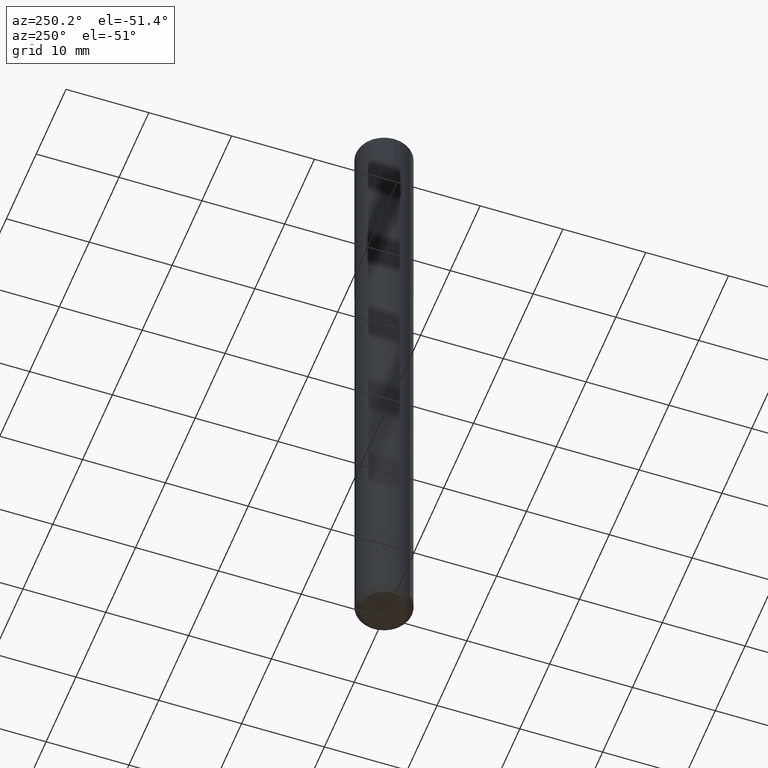
[diagram: clean part render]
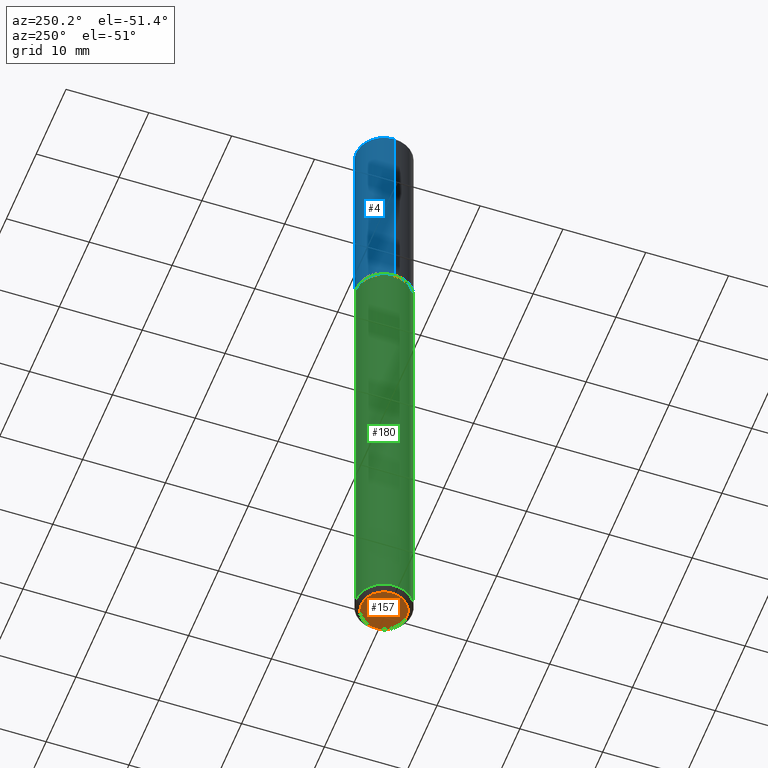
[diagram: same view with three faces highlighted in distinct colors, each labeled with its STEP entity id]
A machine part, auxiliary view with three faces highlighted in distinct colors.
Their STEP definitions:

[orange] entity #157 — the highlighted planar face has unit normal (-0, 0, 1).
#28 = PLANE ( 'NONE',  #402 ) ;
#36 = CARTESIAN_POINT ( 'NONE',  ( 7.948471098289592112E-29, -1.134631552277716210E-14, -3.250000000000000000 ) ) ;
#52 = AXIS2_PLACEMENT_3D ( 'NONE', #221, #256, #386 ) ;
#68 = VERTEX_POINT ( 'NONE', #92 ) ;
#92 = CARTESIAN_POINT ( 'NONE',  ( 8.547829111194798336E-16, 0.1077999999999886410, -3.250000000000000444 ) ) ;
#101 = EDGE_CURVE ( 'NONE', #304, #68, #111, .T. ) ;
#111 = CIRCLE ( 'NONE', #52, 0.1077999999999999931 ) ;
#125 = DIRECTION ( 'NONE',  ( -6.982962677686265133E-15, -1.000000000000000000, 5.068363624609022710E-15 ) ) ;
#133 = CARTESIAN_POINT ( 'NONE',  ( -7.527633766544998796E-16, -0.1078000000000113451, -3.249999999999999556 ) ) ;
#157 = ADVANCED_FACE ( 'NONE', ( #187 ), #28, .F. ) ;
#159 = CARTESIAN_POINT ( 'NONE',  ( 7.947773620101693940E-29, -1.134731435124022443E-14, -3.250000000000000000 ) ) ;
#187 = FACE_OUTER_BOUND ( 'NONE', #302, .T. ) ;
#195 = CIRCLE ( 'NONE', #274, 0.1077999999999999931 ) ;
#221 = CARTESIAN_POINT ( 'NONE',  ( 7.948471098289592112E-29, -1.134631552277716210E-14, -3.250000000000000000 ) ) ;
#224 = DIRECTION ( 'NONE',  ( -6.982962677686265922E-15, -1.000000000000000000, 3.491037415081784460E-15 ) ) ;
#237 = DIRECTION ( 'NONE',  ( -2.445778796490868869E-29, 3.491037415081784460E-15, 1.000000000000000000 ) ) ;
#244 = ORIENTED_EDGE ( 'NONE', *, *, #406, .F. ) ;
#256 = DIRECTION ( 'NONE',  ( -2.445778796490868869E-29, 3.491037415081784460E-15, 1.000000000000000000 ) ) ;
#259 = DIRECTION ( 'NONE',  ( -2.445778796490868588E-29, 3.491037415081784460E-15, 1.000000000000000000 ) ) ;
#274 = AXIS2_PLACEMENT_3D ( 'NONE', #36, #237, #125 ) ;
#302 = EDGE_LOOP ( 'NONE', ( #326, #244 ) ) ;
#304 = VERTEX_POINT ( 'NONE', #133 ) ;
#326 = ORIENTED_EDGE ( 'NONE', *, *, #101, .F. ) ;
#386 = DIRECTION ( 'NONE',  ( -6.982962677686265133E-15, -1.000000000000000000, 5.068363624609022710E-15 ) ) ;
#402 = AXIS2_PLACEMENT_3D ( 'NONE', #159, #259, #224 ) ;
#406 = EDGE_CURVE ( 'NONE', #68, #304, #195, .T. ) ;

[blue] entity #4 — the highlighted cylindrical surface (edge-blend (fillet) strip) has radius 3.3731 mm, axis along (-0, 0, 1).
#4 = ADVANCED_FACE ( 'NONE', ( #276 ), #177, .T. ) ;
#14 = EDGE_LOOP ( 'NONE', ( #365, #400, #47, #73 ) ) ;
#17 = VERTEX_POINT ( 'NONE', #242 ) ;
#20 = AXIS2_PLACEMENT_3D ( 'NONE', #74, #140, #374 ) ;
#23 = EDGE_CURVE ( 'NONE', #398, #105, #89, .T. ) ;
#26 = AXIS2_PLACEMENT_3D ( 'NONE', #329, #331, #137 ) ;
#33 = DIRECTION ( 'NONE',  ( -2.445468806185136877E-29, 3.491481338843145188E-15, 1.000000000000000000 ) ) ;
#47 = ORIENTED_EDGE ( 'NONE', *, *, #23, .F. ) ;
#73 = ORIENTED_EDGE ( 'NONE', *, *, #139, .F. ) ;
#74 = CARTESIAN_POINT ( 'NONE',  ( 6.113672015462882830E-31, -8.728703347107923368E-17, -0.02500000000000016792 ) ) ;
#89 = CIRCLE ( 'NONE', #20, 0.1328000000000000014 ) ;
#105 = VERTEX_POINT ( 'NONE', #182 ) ;
#137 = DIRECTION ( 'NONE',  ( 1.000000000000000000, -6.982962677686265133E-15, 0.000000000000000000 ) ) ;
#139 = EDGE_CURVE ( 'NONE', #17, #398, #414, .T. ) ;
#140 = DIRECTION ( 'NONE',  ( -2.445468806185136597E-29, 3.491481338843145583E-15, 1.000000000000000000 ) ) ;
#149 = VECTOR ( 'NONE', #310, 39.37007874015748143 ) ;
#177 = CYLINDRICAL_SURFACE ( 'NONE', #305, 0.1328000000000000569 ) ;
#182 = CARTESIAN_POINT ( 'NONE',  ( -0.1328000000000000014, -8.449105627329891359E-16, -0.02500000000000016792 ) ) ;
#190 = CARTESIAN_POINT ( 'NONE',  ( 0.1328000000000000569, -9.273374435967366167E-16, 6.475562758257005110E-30 ) ) ;
#204 = EDGE_CURVE ( 'NONE', #399, #105, #249, .T. ) ;
#239 = DIRECTION ( 'NONE',  ( -2.445468806185136597E-29, 3.491481338843145583E-15, 1.000000000000000000 ) ) ;
#242 = CARTESIAN_POINT ( 'NONE',  ( 0.1328000000000001124, -4.417073041770462668E-15, -0.9995000000000004992 ) ) ;
#246 = CIRCLE ( 'NONE', #26, 0.1328000000000001124 ) ;
#249 = LINE ( 'NONE', #356, #149 ) ;
#263 = VECTOR ( 'NONE', #33, 39.37007874015748143 ) ;
#276 = FACE_OUTER_BOUND ( 'NONE', #14, .T. ) ;
#305 = AXIS2_PLACEMENT_3D ( 'NONE', #363, #239, #330 ) ;
#310 = DIRECTION ( 'NONE',  ( -2.445468806185136877E-29, 3.491481338843145188E-15, 1.000000000000000000 ) ) ;
#323 = CARTESIAN_POINT ( 'NONE',  ( -0.1328000000000001124, -2.546134845084311614E-15, -0.9995000000000004992 ) ) ;
#329 = CARTESIAN_POINT ( 'NONE',  ( 2.444246071782045197E-29, -3.489735598173725657E-15, -0.9995000000000004992 ) ) ;
#330 = DIRECTION ( 'NONE',  ( 1.000000000000000000, -6.982962677686266711E-15, 4.876176775795935232E-29 ) ) ;
#331 = DIRECTION ( 'NONE',  ( -2.445468806185136597E-29, 3.491481338843145583E-15, 1.000000000000000000 ) ) ;
#356 = CARTESIAN_POINT ( 'NONE',  ( -0.1328000000000000569, 9.436007530894134510E-16, -6.532345799858516735E-30 ) ) ;
#357 = CARTESIAN_POINT ( 'NONE',  ( 0.1328000000000000014, -1.014624477067815542E-15, -0.02500000000000016792 ) ) ;
#363 = CARTESIAN_POINT ( 'NONE',  ( 0.000000000000000000, 0.000000000000000000, 0.000000000000000000 ) ) ;
#365 = ORIENTED_EDGE ( 'NONE', *, *, #396, .T. ) ;
#374 = DIRECTION ( 'NONE',  ( 1.000000000000000000, -6.982962677686266711E-15, 0.000000000000000000 ) ) ;
#396 = EDGE_CURVE ( 'NONE', #17, #399, #246, .T. ) ;
#398 = VERTEX_POINT ( 'NONE', #357 ) ;
#399 = VERTEX_POINT ( 'NONE', #323 ) ;
#400 = ORIENTED_EDGE ( 'NONE', *, *, #204, .T. ) ;
#414 = LINE ( 'NONE', #190, #263 ) ;

[green] entity #180 — the highlighted cylindrical surface (edge-blend (fillet) strip) has radius 3.3731 mm, axis along (-0, 0, 1).
#7 = LINE ( 'NONE', #230, #112 ) ;
#32 = AXIS2_PLACEMENT_3D ( 'NONE', #375, #80, #211 ) ;
#50 = EDGE_CURVE ( 'NONE', #306, #369, #162, .T. ) ;
#61 = LINE ( 'NONE', #115, #116 ) ;
#71 = VERTEX_POINT ( 'NONE', #148 ) ;
#80 = DIRECTION ( 'NONE',  ( -2.445778796490868869E-29, 3.491037415081784460E-15, 1.000000000000000000 ) ) ;
#83 = AXIS2_PLACEMENT_3D ( 'NONE', #343, #348, #315 ) ;
#90 = CIRCLE ( 'NONE', #407, 0.1328000000000000014 ) ;
#108 = EDGE_CURVE ( 'NONE', #369, #309, #61, .T. ) ;
#112 = VECTOR ( 'NONE', #131, 39.37007874015748143 ) ;
#115 = CARTESIAN_POINT ( 'NONE',  ( -9.273374435967115704E-16, -0.1328000000000034708, -0.9999999999999998890 ) ) ;
#116 = VECTOR ( 'NONE', #316, 39.37007874015748143 ) ;
#131 = DIRECTION ( 'NONE',  ( -2.445778796490868588E-29, 3.491037415081784460E-15, 1.000000000000000000 ) ) ;
#134 = ORIENTED_EDGE ( 'NONE', *, *, #50, .T. ) ;
#148 = CARTESIAN_POINT ( 'NONE',  ( 9.436007530894919427E-16, 0.1327999999999965042, -1.000000000000000888 ) ) ;
#162 = CIRCLE ( 'NONE', #32, 0.1328000000000000014 ) ;
#176 = ORIENTED_EDGE ( 'NONE', *, *, #377, .F. ) ;
#180 = ADVANCED_FACE ( 'NONE', ( #291 ), #381, .T. ) ;
#192 = ORIENTED_EDGE ( 'NONE', *, *, #108, .T. ) ;
#200 = DIRECTION ( 'NONE',  ( -6.982962677686265133E-15, -1.000000000000000000, 3.085671679590658892E-15 ) ) ;
#205 = CARTESIAN_POINT ( 'NONE',  ( 9.436007530894923371E-16, 0.1327999999999888436, -3.225000000000000089 ) ) ;
#211 = DIRECTION ( 'NONE',  ( -6.982962677686265133E-15, -1.000000000000000000, 4.114228906120878260E-15 ) ) ;
#230 = CARTESIAN_POINT ( 'NONE',  ( 9.436007530894375113E-16, 0.1327999999999965042, -1.000000000000000666 ) ) ;
#232 = CARTESIAN_POINT ( 'NONE',  ( -9.273374435966567446E-16, -0.1328000000000111591, -3.224999999999999201 ) ) ;
#275 = DIRECTION ( 'NONE',  ( -2.445778796490868869E-29, 3.491037415081784460E-15, 1.000000000000000000 ) ) ;
#291 = FACE_OUTER_BOUND ( 'NONE', #395, .T. ) ;
#306 = VERTEX_POINT ( 'NONE', #205 ) ;
#309 = VERTEX_POINT ( 'NONE', #388 ) ;
#315 = DIRECTION ( 'NONE',  ( -6.982962677686265133E-15, -1.000000000000000000, 3.085671679590658892E-15 ) ) ;
#316 = DIRECTION ( 'NONE',  ( -2.445778796490868588E-29, 3.491037415081784460E-15, 1.000000000000000000 ) ) ;
#324 = ORIENTED_EDGE ( 'NONE', *, *, #390, .F. ) ;
#343 = CARTESIAN_POINT ( 'NONE',  ( 2.445468806185137438E-29, -3.491481338843146371E-15, -1.000000000000000222 ) ) ;
#348 = DIRECTION ( 'NONE',  ( -2.445778796490868869E-29, 3.491037415081784460E-15, 1.000000000000000000 ) ) ;
#361 = CARTESIAN_POINT ( 'NONE',  ( 2.445468806185137998E-29, -3.491481338843147555E-15, -1.000000000000000444 ) ) ;
#369 = VERTEX_POINT ( 'NONE', #232 ) ;
#375 = CARTESIAN_POINT ( 'NONE',  ( 7.887326628377317868E-29, -1.125903958740011493E-14, -3.224999999999999645 ) ) ;
#377 = EDGE_CURVE ( 'NONE', #306, #71, #7, .T. ) ;
#381 = CYLINDRICAL_SURFACE ( 'NONE', #83, 0.1328000000000000014 ) ;
#388 = CARTESIAN_POINT ( 'NONE',  ( -9.273374435967115704E-16, -0.1328000000000034708, -1.000000000000000222 ) ) ;
#390 = EDGE_CURVE ( 'NONE', #71, #309, #90, .T. ) ;
#395 = EDGE_LOOP ( 'NONE', ( #176, #134, #192, #324 ) ) ;
#407 = AXIS2_PLACEMENT_3D ( 'NONE', #361, #275, #200 ) ;